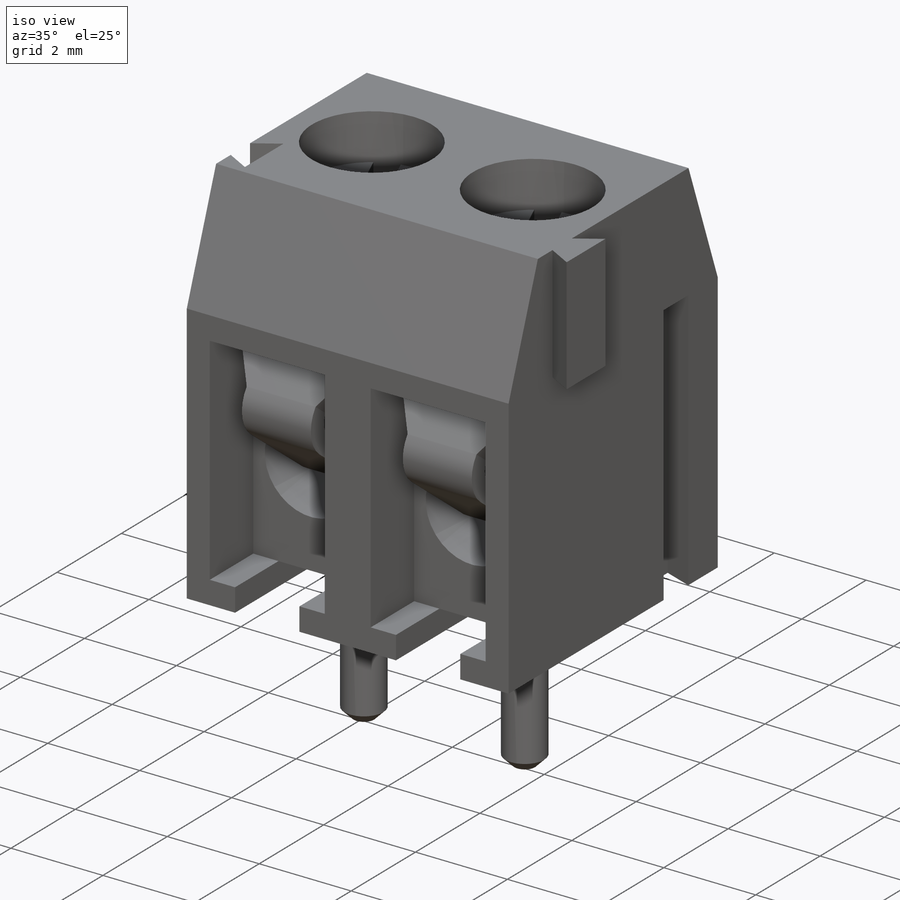
[diagram: iso view]
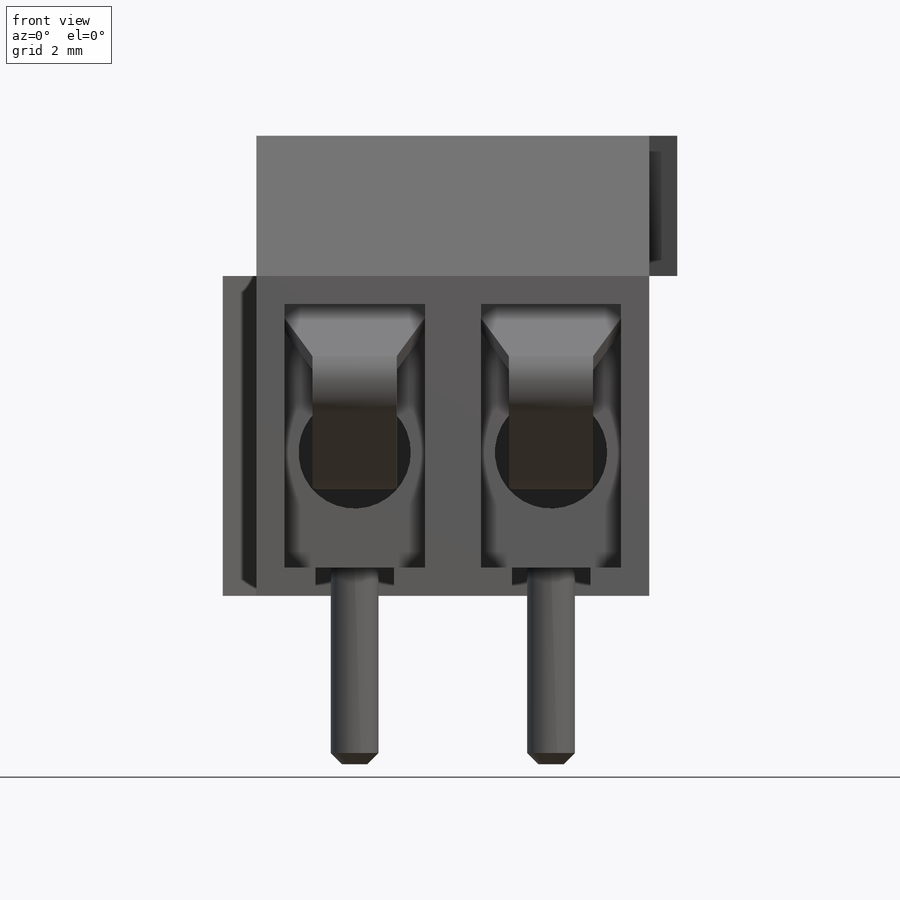
[diagram: front view]
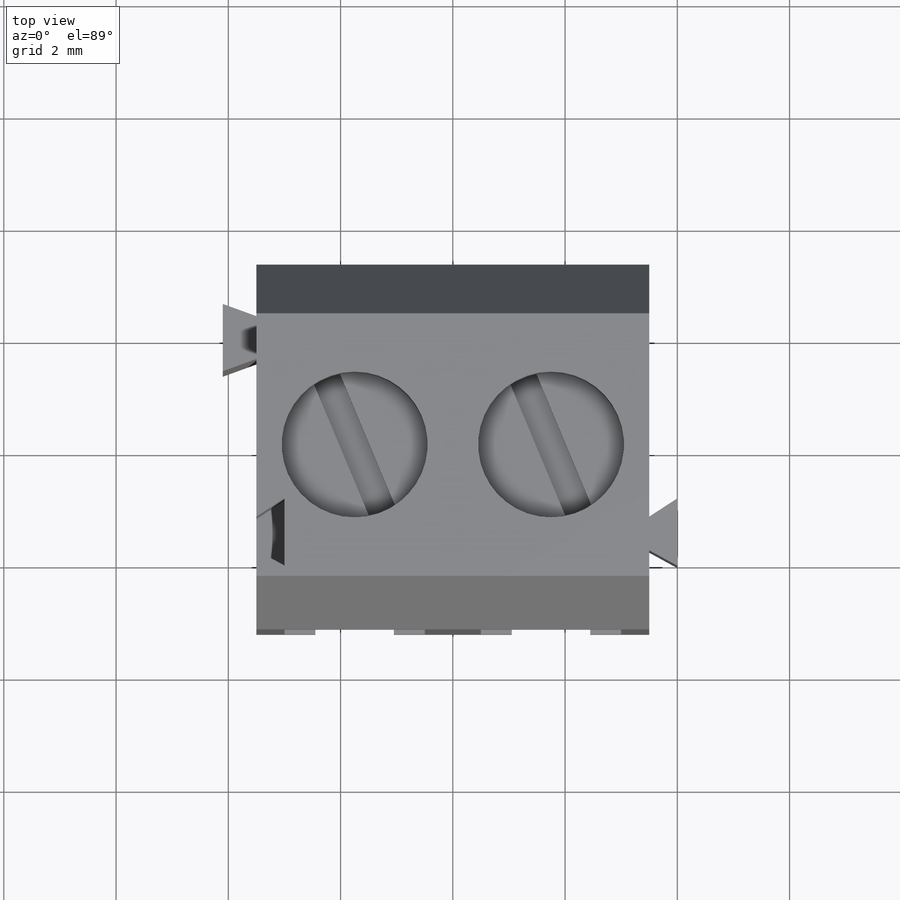
[diagram: top view]
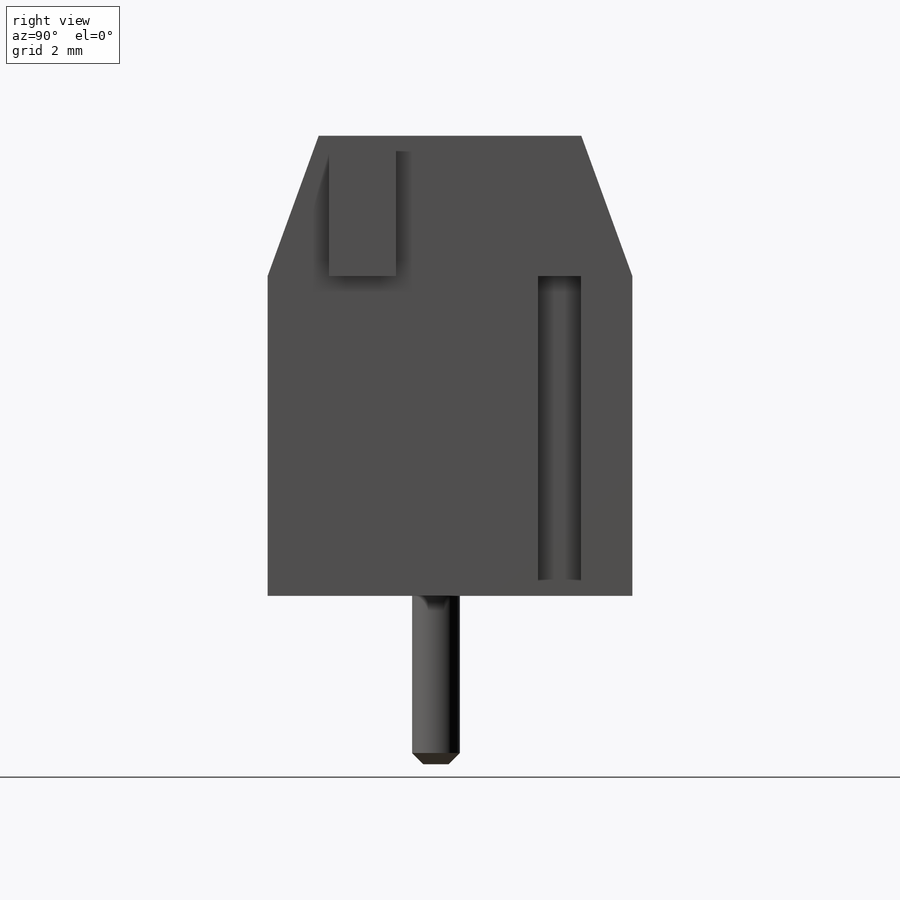
[diagram: right view]
SOLIDWORKS PART (.sldprt)
format: sldprt  version: not decoded by parser v0  size: 564,736 bytes
history: native  units: mm
features: sketch x17, extrude x8, cut_extrude x8, plane x3, fillet x2, material x1, pattern_linear x1, chamfer x1 (+12 scaffold rows collapsed)
feature tree (53):
  scaffold x12  (default folders/planes/origin — collapsed)
  material  "Material <not specified>"
  sketch  "Sketch1"  dims[D1=7.0mm D2=5.0mm D3=6.5mm D4=3.8mm]
  extrude  "Extrude1"  Depth=8.2mm
  sketch  "Sketch2"  dims[c1.D1=5.0mm c1.D2=2.5mm c1.D3=3.5mm c2.D1=1.3mm c3.D1=200.0deg c3.D2=~3.733631mm c4.D2=200.0deg c4.D3=2.5mm]
  cut_extrude  "Cut-Extrude1"  [1 undecoded]
  sketch  "Sketch3"  dims[D7=2.6mm D8=0.7mm D1=0.4mm D2=0.2mm D3=4.0mm D4=2.0mm D5=1.75mm D6=1.75mm D9=0.28mm]
  cut_extrude  "Cut-Extrude2"  Depth=3mm
  sketch  "Sketch4"  dims[D1=0.5mm D2=0.5mm D3=0.5mm D4=1.0mm D5=0.5mm]
  cut_extrude  "Cut-Extrude3"  Depth=2mm
  sketch  "Sketch5"  dims[D3=0.4mm D1=0.0mm D2=0.0mm]
  extrude  "Extrude2"  Depth=1.35mm
  sketch  "Sketch6"  dims[D1=2.0mm D2=3.5mm D3=1.75mm]
  cut_extrude  "Cut-Extrude4"  [1 undecoded]
  plane  "Plane1"
  plane  "Plane2"
  sketch  "Sketch7"  dims[c1.D1=1.2mm c1.D2=~0.525383mm c2.D2=315.0deg c3.D2=1.2mm c4.D2=70.0deg c4.D3=1.2mm c5.D3=70.0deg c5.D4=0.6mm c5.D5=1.9mm]
  extrude  "Extrude3"  [1 undecoded]
  sketch  "Sketch9"  dims[D1=0.0mm]
  cut_extrude  "Cut-Extrude5"  [1 undecoded]
  sketch  "Sketch12"
  extrude  "Extrude5"  Depth=1mm
  sketch  "Sketch13"  dims[D1=0.5mm D2=0.5mm D3=0.25mm D4=0.25mm]
  cut_extrude  "Cut-Extrude7"  Depth=0.4mm
  sketch  "Sketch14"  dims[D2=0.4mm D3=0.4mm D4=0.4mm D1=0.0mm]
  extrude  "Extrude6"  Depth=0.75mm
  fillet  "Fillet3"  Radius=0.3mm
  fillet  "Fillet4"  Radius=0.7mm
  sketch  "Эскиз1"  dims[c1.D1=~1.341544mm c2.D1=30.0deg c2.D2=~1.344615mm c3.D2=30.0deg]
  extrude  "Extrude7"  [1 undecoded]
  pattern_linear  "Pattern1"  Count1=2 Count2=1 Spacing1=3.5mm Spacing2=50mm
  sketch  "Эскиз2"  dims[D1=0.5mm D2=0.6mm D3=1.2mm]
  cut_extrude  "Cut-Extrude8"  Depth=2.5mm
  extrude  "Extrude9"  [1 undecoded]
  sketch  "Эскиз2<3>"  dims[D1=2.5mm]
  sketch  "Эскиз4"  dims[D1=1.4mm D2=1.05mm D3=1.4mm D4=3.5mm]
  cut_extrude  "Cut-Extrude9"  Depth=3.5mm
  sketch  "Эскиз5"  dims[D1=0.85mm D2=3.5mm D3=3.5mm D4=1.75mm]
  extrude  "Extrude10"  Depth=3mm
  chamfer  "Fillet5"  Distance=0.2mm Angle=45deg
  plane  "Board Plane"  Offset=0.5mm
  sketch  "Component_Outline"
decode coverage: 29 of 37 modeling features carry decoded parameters
note: ~ marks probable driven/reference dimensions
note: 6 parameter values undecoded
summary: no parameter record found for 6 features
note: suppression state not decoded; provenance and decode notes live in map.json
